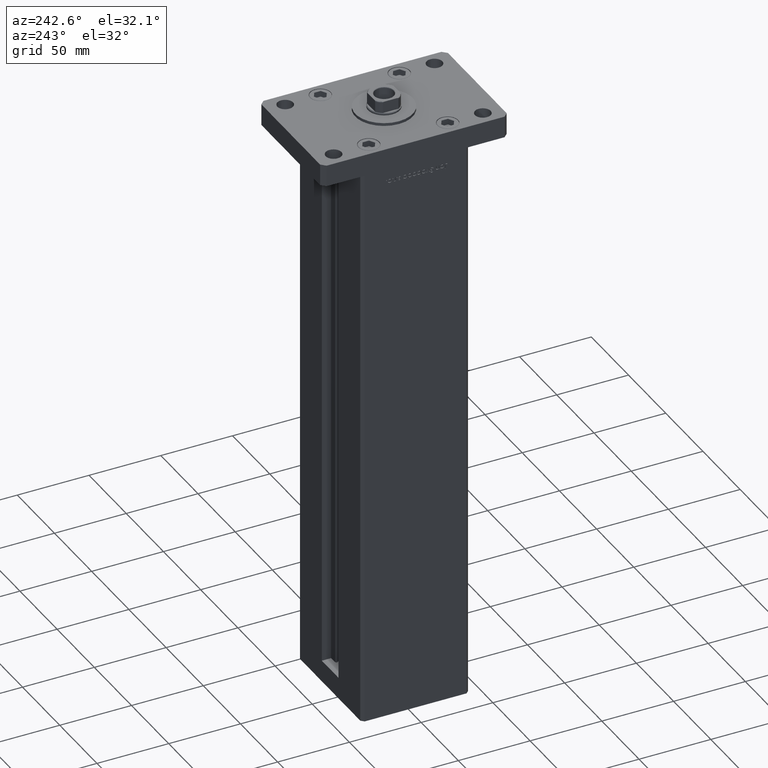
[diagram: clean part render]
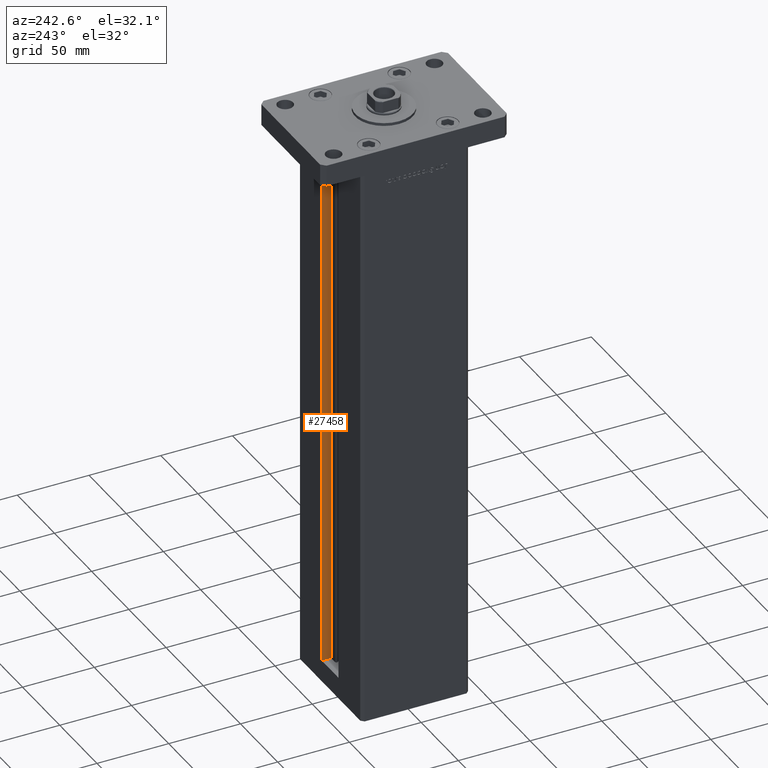
[diagram: same view with one face highlighted and labeled with its STEP entity id]
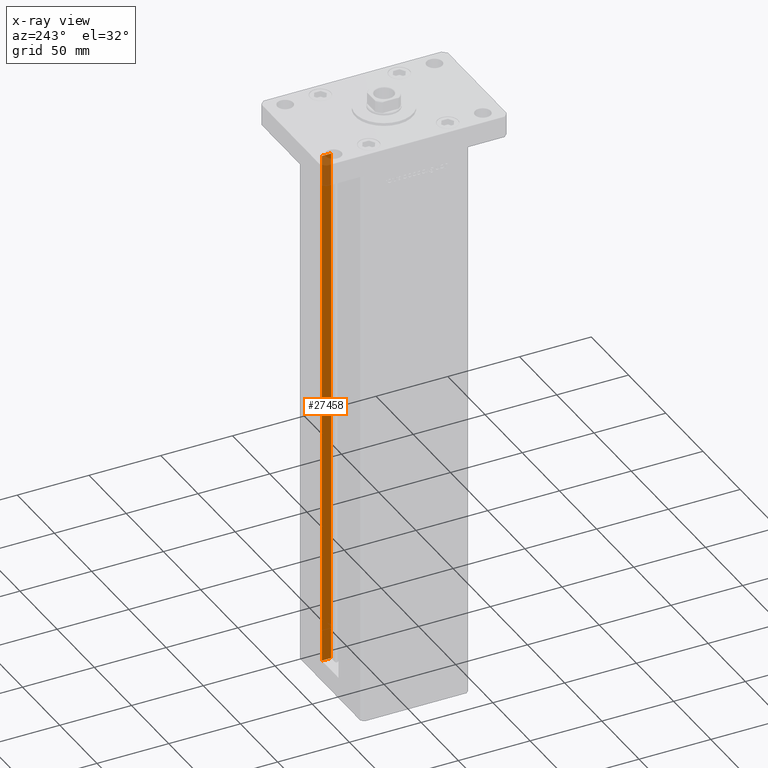
[diagram: x-ray of the same camera — body ghosted, the highlighted face saturated]
A machine part, auxiliary view. The second image highlights one B-rep face of the part: STEP entity #27458.
The next image is the same camera in x-ray: the body ghosted, the highlighted face saturated — about 6% of this face is hidden behind the body in this view.
In plain terms, the highlighted planar face has unit normal (1, 0, 0).
Its self-contained STEP definition (entity closure, byte-faithful):
#673 = DIRECTION ( 'NONE',  ( 1.000000000000000000, -0.000000000000000000, 0.000000000000000000 ) ) ;
#1792 = EDGE_CURVE ( 'NONE', #10730, #8294, #31753, .T. ) ;
#1875 = CARTESIAN_POINT ( 'NONE',  ( 11.25000000000000000, 30.99999999999999289, 368.5000000000000000 ) ) ;
#2489 = CARTESIAN_POINT ( 'NONE',  ( 11.25000000000000000, 0.000000000000000000, 368.5000000000000000 ) ) ;
#3845 = LINE ( 'NONE', #14795, #26109 ) ;
#5233 = EDGE_LOOP ( 'NONE', ( #49552, #8885, #17287, #41231 ) ) ;
#6738 = CARTESIAN_POINT ( 'NONE',  ( 11.25000000000000000, 30.99999999999999289, 0.000000000000000000 ) ) ;
#8294 = VERTEX_POINT ( 'NONE', #1875 ) ;
#8885 = ORIENTED_EDGE ( 'NONE', *, *, #20628, .F. ) ;
#10730 = VERTEX_POINT ( 'NONE', #45300 ) ;
#12061 = PLANE ( 'NONE',  #35903 ) ;
#12790 = LINE ( 'NONE', #44521, #34088 ) ;
#14795 = CARTESIAN_POINT ( 'NONE',  ( 11.25000000000000000, 37.50000000000000000, 0.000000000000000000 ) ) ;
#17287 = ORIENTED_EDGE ( 'NONE', *, *, #20398, .T. ) ;
#19564 = DIRECTION ( 'NONE',  ( -0.000000000000000000, -1.000000000000000000, 0.000000000000000000 ) ) ;
#20398 = EDGE_CURVE ( 'NONE', #31105, #8294, #22063, .T. ) ;
#20628 = EDGE_CURVE ( 'NONE', #31105, #39267, #12790, .T. ) ;
#21334 = CARTESIAN_POINT ( 'NONE',  ( 11.25000000000000000, 37.50000000000000000, 0.000000000000000000 ) ) ;
#22063 = LINE ( 'NONE', #29647, #40998 ) ;
#24462 = DIRECTION ( 'NONE',  ( 0.000000000000000000, 1.000000000000000000, 0.000000000000000000 ) ) ;
#26109 = VECTOR ( 'NONE', #35648, 1000.000000000000000 ) ;
#27458 = ADVANCED_FACE ( 'NONE', ( #33727 ), #12061, .F. ) ;
#29647 = CARTESIAN_POINT ( 'NONE',  ( 11.25000000000000000, 30.99999999999999289, 0.000000000000000000 ) ) ;
#29919 = DIRECTION ( 'NONE',  ( -0.000000000000000000, -0.000000000000000000, 1.000000000000000000 ) ) ;
#31105 = VERTEX_POINT ( 'NONE', #6738 ) ;
#31753 = LINE ( 'NONE', #2489, #48396 ) ;
#33530 = EDGE_CURVE ( 'NONE', #39267, #10730, #3845, .T. ) ;
#33727 = FACE_OUTER_BOUND ( 'NONE', #5233, .T. ) ;
#34088 = VECTOR ( 'NONE', #24462, 1000.000000000000000 ) ;
#35648 = DIRECTION ( 'NONE',  ( -0.000000000000000000, -0.000000000000000000, 1.000000000000000000 ) ) ;
#35903 = AXIS2_PLACEMENT_3D ( 'NONE', #44848, #673, #49731 ) ;
#39267 = VERTEX_POINT ( 'NONE', #21334 ) ;
#40998 = VECTOR ( 'NONE', #29919, 1000.000000000000000 ) ;
#41231 = ORIENTED_EDGE ( 'NONE', *, *, #1792, .F. ) ;
#44521 = CARTESIAN_POINT ( 'NONE',  ( 11.25000000000000000, 30.99999999999999289, 0.000000000000000000 ) ) ;
#44848 = CARTESIAN_POINT ( 'NONE',  ( 11.25000000000000000, 30.99999999999999289, 0.000000000000000000 ) ) ;
#45300 = CARTESIAN_POINT ( 'NONE',  ( 11.24999999999999289, 37.50000000000000000, 368.5000000000000000 ) ) ;
#48396 = VECTOR ( 'NONE', #19564, 1000.000000000000000 ) ;
#49552 = ORIENTED_EDGE ( 'NONE', *, *, #33530, .F. ) ;
#49731 = DIRECTION ( 'NONE',  ( 0.000000000000000000, 0.000000000000000000, -1.000000000000000000 ) ) ;